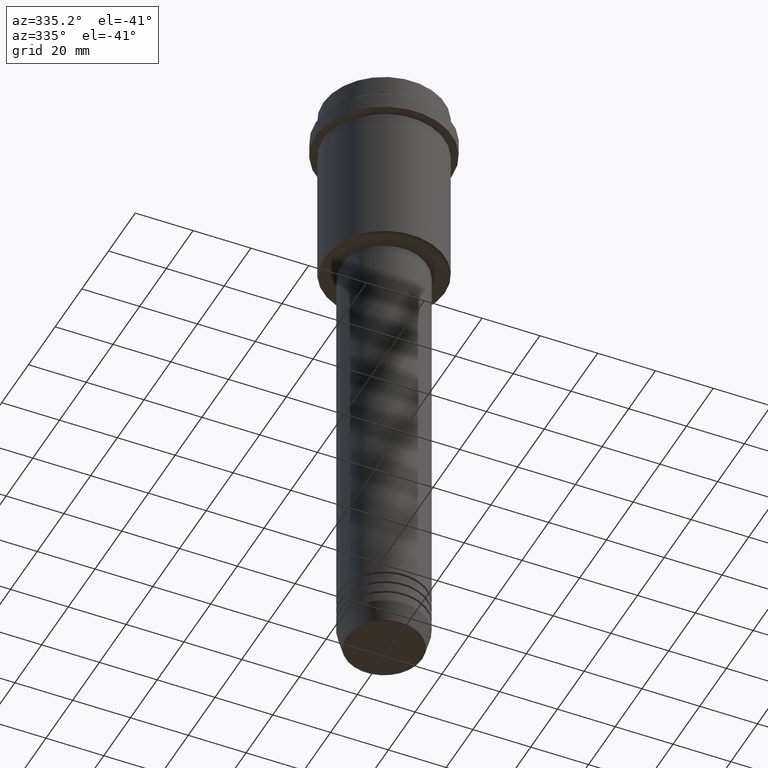
[diagram: clean part render]
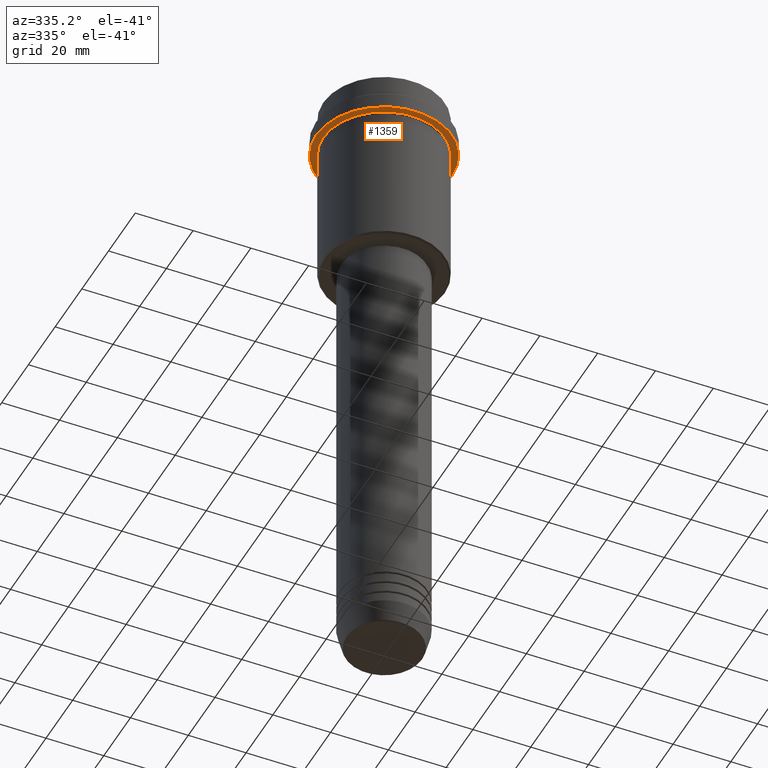
[diagram: same view with one face highlighted and labeled with its STEP entity id]
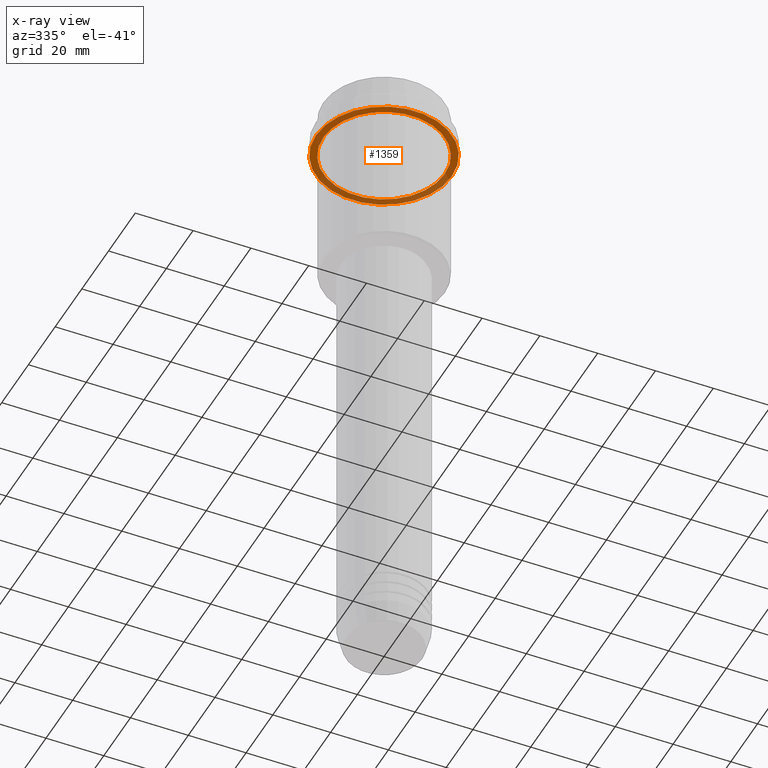
[diagram: x-ray of the same camera — body ghosted, the highlighted face saturated]
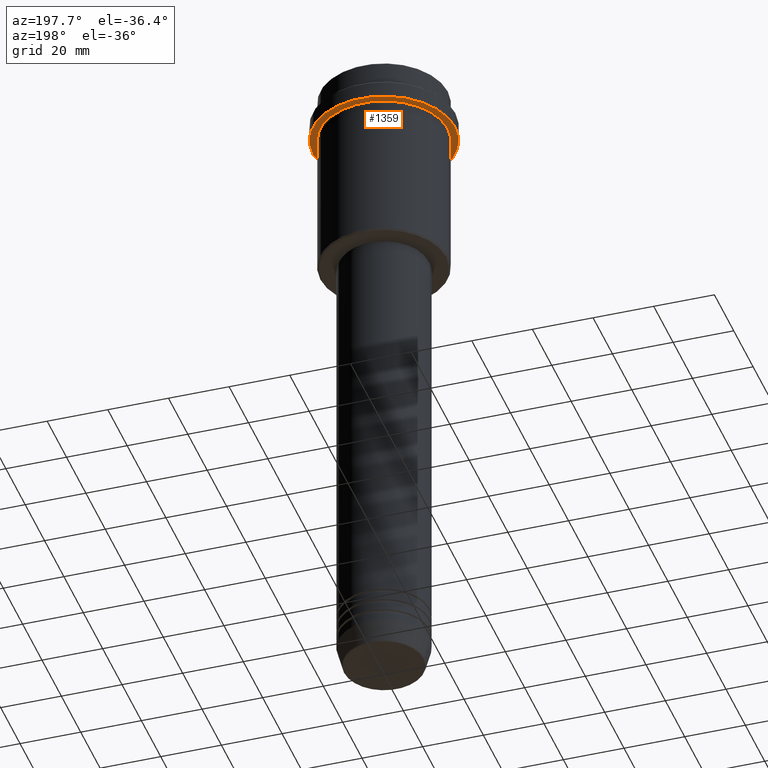
[diagram: same view with one face highlighted and labeled with its STEP entity id]
A machine part, auxiliary view. The second image highlights one B-rep face of the part: STEP entity #1359.
The next image is the same camera in x-ray: the body ghosted, the highlighted face saturated — about 35% of this face is hidden behind the body in this view.
A second angle (auxiliary view) of the same face is appended — the face is thin or edge-on in the first view.
In plain terms, the highlighted planar face has unit normal (0, 0, -1).
Its self-contained STEP definition (entity closure, byte-faithful):
#1 = CARTESIAN_POINT ( 'NONE',  ( 0.000000000000000000, 0.000000000000000000, -15.00000000000000178 ) ) ;
#27 = AXIS2_PLACEMENT_3D ( 'NONE', #1, #1192, #549 ) ;
#48 = DIRECTION ( 'NONE',  ( -0.000000000000000000, -0.000000000000000000, 1.000000000000000000 ) ) ;
#67 = AXIS2_PLACEMENT_3D ( 'NONE', #1001, #573, #1116 ) ;
#143 = VERTEX_POINT ( 'NONE', #743 ) ;
#144 = FACE_OUTER_BOUND ( 'NONE', #818, .T. ) ;
#145 = DIRECTION ( 'NONE',  ( -0.000000000000000000, -0.000000000000000000, 1.000000000000000000 ) ) ;
#198 = ORIENTED_EDGE ( 'NONE', *, *, #1348, .F. ) ;
#250 = DIRECTION ( 'NONE',  ( 0.000000000000000000, 0.000000000000000000, -1.000000000000000000 ) ) ;
#267 = VERTEX_POINT ( 'NONE', #1115 ) ;
#299 = EDGE_CURVE ( 'NONE', #267, #697, #1279, .T. ) ;
#314 = CIRCLE ( 'NONE', #67, 20.99999999999999289 ) ;
#349 = PLANE ( 'NONE',  #526 ) ;
#367 = DIRECTION ( 'NONE',  ( -1.000000000000000000, 0.000000000000000000, -0.000000000000000000 ) ) ;
#400 = VERTEX_POINT ( 'NONE', #1020 ) ;
#446 = ORIENTED_EDGE ( 'NONE', *, *, #951, .T. ) ;
#526 = AXIS2_PLACEMENT_3D ( 'NONE', #912, #250, #367 ) ;
#549 = DIRECTION ( 'NONE',  ( -1.000000000000000000, 0.000000000000000000, 0.000000000000000000 ) ) ;
#573 = DIRECTION ( 'NONE',  ( -0.000000000000000000, -0.000000000000000000, 1.000000000000000000 ) ) ;
#610 = DIRECTION ( 'NONE',  ( 1.000000000000000000, 0.000000000000000000, 0.000000000000000000 ) ) ;
#680 = CARTESIAN_POINT ( 'NONE',  ( 0.000000000000000000, 0.000000000000000000, -15.00000000000000178 ) ) ;
#697 = VERTEX_POINT ( 'NONE', #843 ) ;
#704 = FACE_BOUND ( 'NONE', #1215, .T. ) ;
#743 = CARTESIAN_POINT ( 'NONE',  ( 20.99999999999999289, 2.571758278209440872E-15, -15.00000000000000178 ) ) ;
#818 = EDGE_LOOP ( 'NONE', ( #1052, #198 ) ) ;
#843 = CARTESIAN_POINT ( 'NONE',  ( -23.50000000000000711, 2.877919977996281109E-15, -15.00000000000000178 ) ) ;
#912 = CARTESIAN_POINT ( 'NONE',  ( 0.000000000000000000, 23.50000000000000355, -15.00000000000000178 ) ) ;
#929 = AXIS2_PLACEMENT_3D ( 'NONE', #1386, #145, #610 ) ;
#951 = EDGE_CURVE ( 'NONE', #143, #400, #314, .T. ) ;
#959 = CIRCLE ( 'NONE', #27, 20.99999999999999289 ) ;
#977 = AXIS2_PLACEMENT_3D ( 'NONE', #680, #48, #1261 ) ;
#1001 = CARTESIAN_POINT ( 'NONE',  ( 0.000000000000000000, 0.000000000000000000, -15.00000000000000178 ) ) ;
#1020 = CARTESIAN_POINT ( 'NONE',  ( -20.99999999999999289, 0.000000000000000000, -15.00000000000000178 ) ) ;
#1052 = ORIENTED_EDGE ( 'NONE', *, *, #299, .F. ) ;
#1115 = CARTESIAN_POINT ( 'NONE',  ( 23.50000000000000355, 0.000000000000000000, -15.00000000000000178 ) ) ;
#1116 = DIRECTION ( 'NONE',  ( -1.000000000000000000, 0.000000000000000000, 0.000000000000000000 ) ) ;
#1134 = CIRCLE ( 'NONE', #977, 23.50000000000000355 ) ;
#1192 = DIRECTION ( 'NONE',  ( -0.000000000000000000, -0.000000000000000000, 1.000000000000000000 ) ) ;
#1215 = EDGE_LOOP ( 'NONE', ( #1305, #446 ) ) ;
#1261 = DIRECTION ( 'NONE',  ( 1.000000000000000000, 0.000000000000000000, 0.000000000000000000 ) ) ;
#1279 = CIRCLE ( 'NONE', #929, 23.50000000000000355 ) ;
#1305 = ORIENTED_EDGE ( 'NONE', *, *, #1323, .T. ) ;
#1323 = EDGE_CURVE ( 'NONE', #400, #143, #959, .T. ) ;
#1348 = EDGE_CURVE ( 'NONE', #697, #267, #1134, .T. ) ;
#1359 = ADVANCED_FACE ( 'NONE', ( #704, #144 ), #349, .T. ) ;
#1386 = CARTESIAN_POINT ( 'NONE',  ( 0.000000000000000000, 0.000000000000000000, -15.00000000000000178 ) ) ;